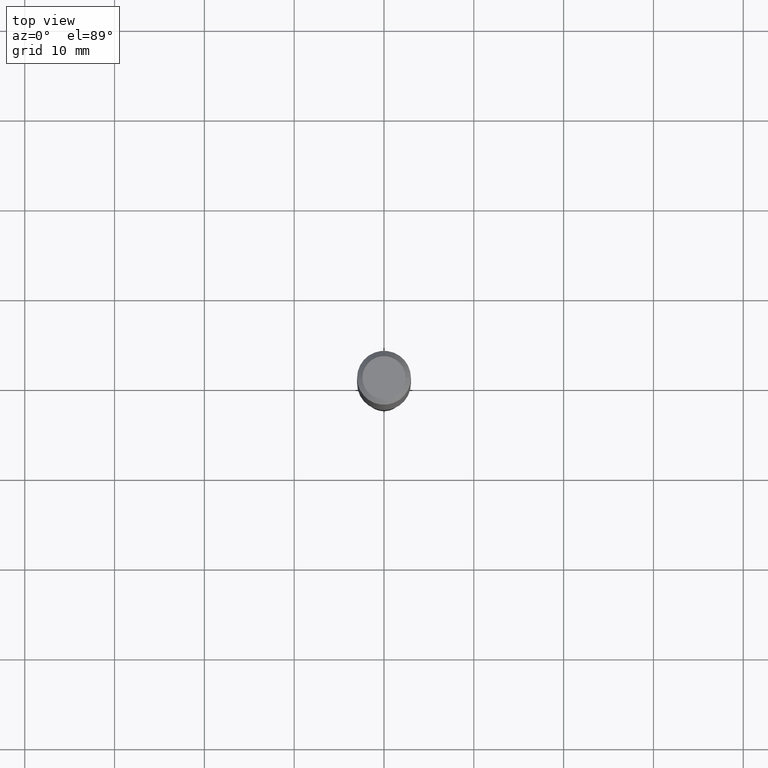
[diagram: clean part render]
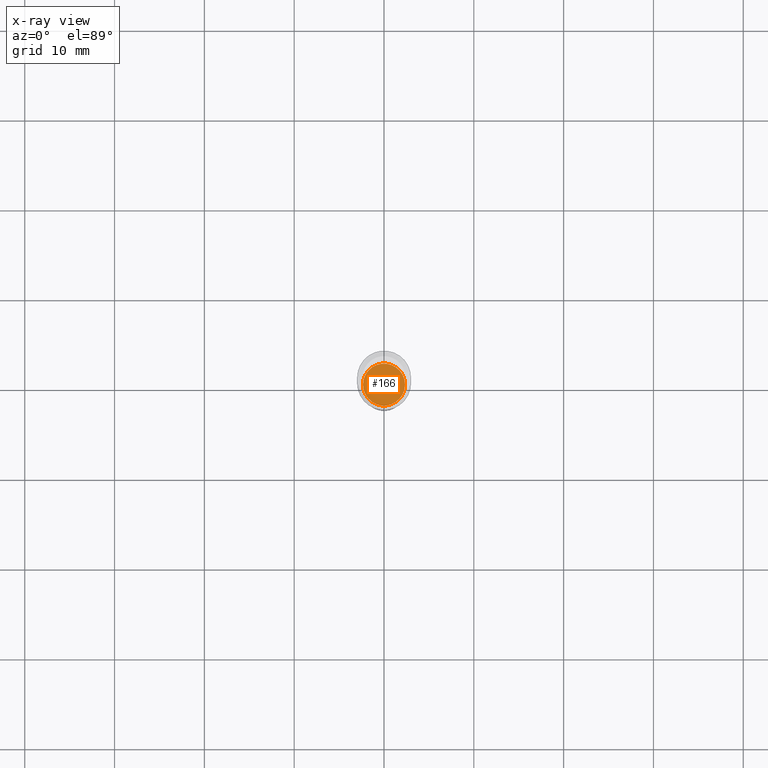
[diagram: x-ray — body ghosted, one internal face saturated and labeled with its STEP entity id]
A machine part, top view, then the same camera in x-ray: the body is ghosted and one INTERNAL B-rep face — a face not visible from any outside direction — is saturated and labeled: STEP entity #166.
In plain terms, the highlighted planar face has unit normal (-0, 0, 1).
Its self-contained STEP definition (entity closure, byte-faithful):
#6 = CARTESIAN_POINT ( 'NONE',  ( 4.332637083918208108E-29, -6.185857488028402659E-15, -1.771700000000000719 ) ) ;
#48 = DIRECTION ( 'NONE',  ( 1.000000000000000000, -6.982962677686269866E-15, 0.000000000000000000 ) ) ;
#85 = EDGE_CURVE ( 'NONE', #214, #131, #343, .T. ) ;
#112 = DIRECTION ( 'NONE',  ( -2.445468806185136597E-29, 3.491481338843145583E-15, 1.000000000000000000 ) ) ;
#128 = ORIENTED_EDGE ( 'NONE', *, *, #85, .F. ) ;
#131 = VERTEX_POINT ( 'NONE', #176 ) ;
#138 = CARTESIAN_POINT ( 'NONE',  ( 6.589800474479064171E-30, -1.144674345582729073E-14, -1.771700000000000719 ) ) ;
#166 = ADVANCED_FACE ( 'NONE', ( #291 ), #365, .F. ) ;
#176 = CARTESIAN_POINT ( 'NONE',  ( -0.09199999999999999845, -5.529508943954998706E-15, -1.771700000000000719 ) ) ;
#189 = ORIENTED_EDGE ( 'NONE', *, *, #311, .F. ) ;
#214 = VERTEX_POINT ( 'NONE', #330 ) ;
#215 = DIRECTION ( 'NONE',  ( 1.000000000000000000, -6.982962677686269866E-15, 0.000000000000000000 ) ) ;
#222 = DIRECTION ( 'NONE',  ( -2.438088387897960049E-29, 3.491481338843145188E-15, 1.000000000000000000 ) ) ;
#266 = DIRECTION ( 'NONE',  ( -2.445468806185136597E-29, 3.491481338843145583E-15, 1.000000000000000000 ) ) ;
#287 = CIRCLE ( 'NONE', #418, 0.09199999999999999845 ) ;
#291 = FACE_OUTER_BOUND ( 'NONE', #434, .T. ) ;
#311 = EDGE_CURVE ( 'NONE', #131, #214, #287, .T. ) ;
#330 = CARTESIAN_POINT ( 'NONE',  ( 0.09199999999999999845, -6.828290054375539638E-15, -1.771700000000000719 ) ) ;
#335 = AXIS2_PLACEMENT_3D ( 'NONE', #138, #222, #404 ) ;
#343 = CIRCLE ( 'NONE', #369, 0.09199999999999999845 ) ;
#365 = PLANE ( 'NONE',  #335 ) ;
#369 = AXIS2_PLACEMENT_3D ( 'NONE', #374, #112, #215 ) ;
#374 = CARTESIAN_POINT ( 'NONE',  ( 4.332637083918208108E-29, -6.185857488028402659E-15, -1.771700000000000719 ) ) ;
#404 = DIRECTION ( 'NONE',  ( 1.000000000000000000, -6.982962677686265922E-15, 4.876176775795935793E-29 ) ) ;
#418 = AXIS2_PLACEMENT_3D ( 'NONE', #6, #266, #48 ) ;
#434 = EDGE_LOOP ( 'NONE', ( #128, #189 ) ) ;